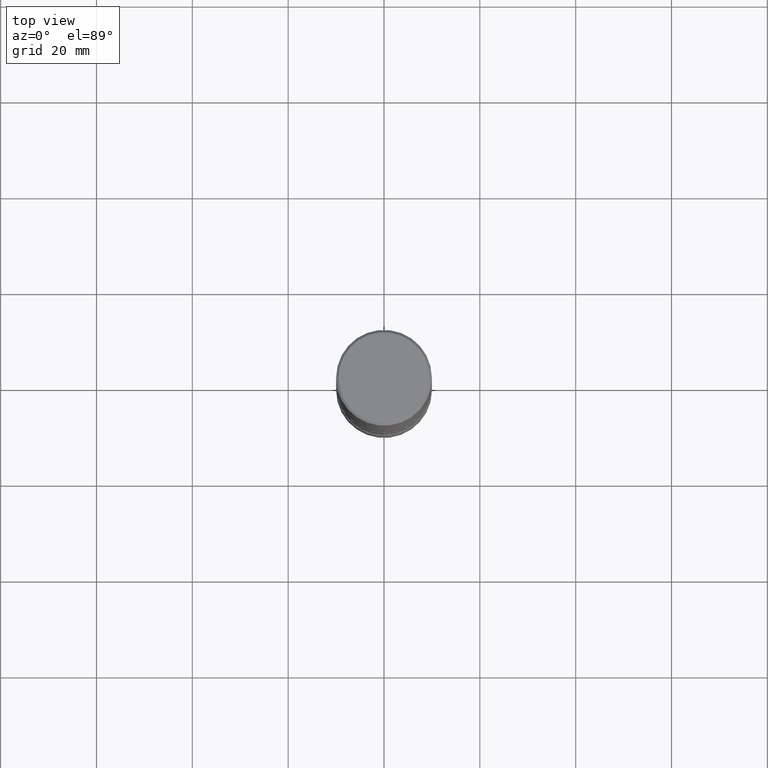
[diagram: clean part render]
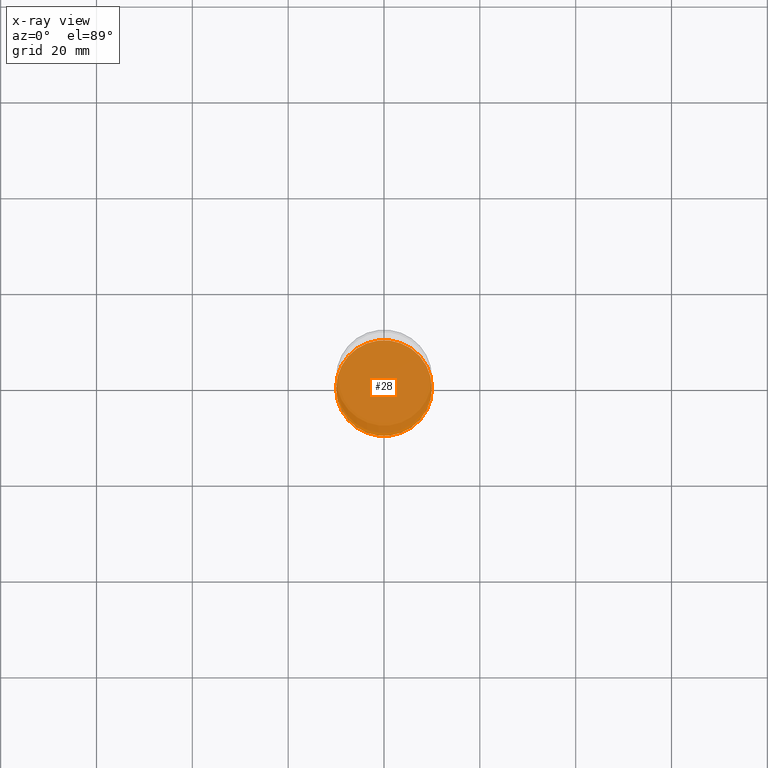
[diagram: x-ray — body ghosted, one internal face saturated and labeled with its STEP entity id]
A machine part, top view, then the same camera in x-ray: the body is ghosted and one INTERNAL B-rep face — a face not visible from any outside direction — is saturated and labeled: STEP entity #28.
In plain terms, the highlighted planar face has unit normal (0, -0, -1).
Its self-contained STEP definition (entity closure, byte-faithful):
#28 = ADVANCED_FACE ( 'NONE', ( #539 ), #549, .F. ) ;
#39 = DIRECTION ( 'NONE',  ( 1.000000000000000000, -6.982962677686269077E-15, 0.000000000000000000 ) ) ;
#56 = ORIENTED_EDGE ( 'NONE', *, *, #468, .T. ) ;
#59 = CIRCLE ( 'NONE', #246, 0.3937000000000002720 ) ;
#81 = DIRECTION ( 'NONE',  ( -2.445468806185136597E-29, 3.491481338843145583E-15, 1.000000000000000000 ) ) ;
#121 = DIRECTION ( 'NONE',  ( 2.438088387897960049E-29, -3.491481338843145188E-15, -1.000000000000000000 ) ) ;
#144 = CARTESIAN_POINT ( 'NONE',  ( -0.3937000000000002720, -1.589703178188033670E-14, -4.921199999999999797 ) ) ;
#147 = VERTEX_POINT ( 'NONE', #265 ) ;
#159 = CARTESIAN_POINT ( 'NONE',  ( 1.203464108899829379E-28, -1.718227796471488830E-14, -4.921199999999999797 ) ) ;
#162 = ORIENTED_EDGE ( 'NONE', *, *, #494, .T. ) ;
#188 = CIRCLE ( 'NONE', #277, 0.3937000000000002720 ) ;
#214 = EDGE_LOOP ( 'NONE', ( #56, #162 ) ) ;
#246 = AXIS2_PLACEMENT_3D ( 'NONE', #541, #81, #421 ) ;
#259 = CARTESIAN_POINT ( 'NONE',  ( 1.203464108899829379E-28, -1.718227796471488830E-14, -4.921199999999999797 ) ) ;
#265 = CARTESIAN_POINT ( 'NONE',  ( 0.3937000000000002720, -1.993147037091997467E-14, -4.921199999999999797 ) ) ;
#277 = AXIS2_PLACEMENT_3D ( 'NONE', #259, #379, #39 ) ;
#288 = VERTEX_POINT ( 'NONE', #144 ) ;
#379 = DIRECTION ( 'NONE',  ( -2.445468806185136597E-29, 3.491481338843145583E-15, 1.000000000000000000 ) ) ;
#414 = AXIS2_PLACEMENT_3D ( 'NONE', #159, #121, #463 ) ;
#421 = DIRECTION ( 'NONE',  ( 1.000000000000000000, -6.982962677686269077E-15, 0.000000000000000000 ) ) ;
#463 = DIRECTION ( 'NONE',  ( -1.000000000000000000, 6.982962677686265922E-15, -4.876176775795935793E-29 ) ) ;
#468 = EDGE_CURVE ( 'NONE', #147, #288, #188, .T. ) ;
#494 = EDGE_CURVE ( 'NONE', #288, #147, #59, .T. ) ;
#539 = FACE_OUTER_BOUND ( 'NONE', #214, .T. ) ;
#541 = CARTESIAN_POINT ( 'NONE',  ( 1.203464108899829379E-28, -1.718227796471488830E-14, -4.921199999999999797 ) ) ;
#549 = PLANE ( 'NONE',  #414 ) ;